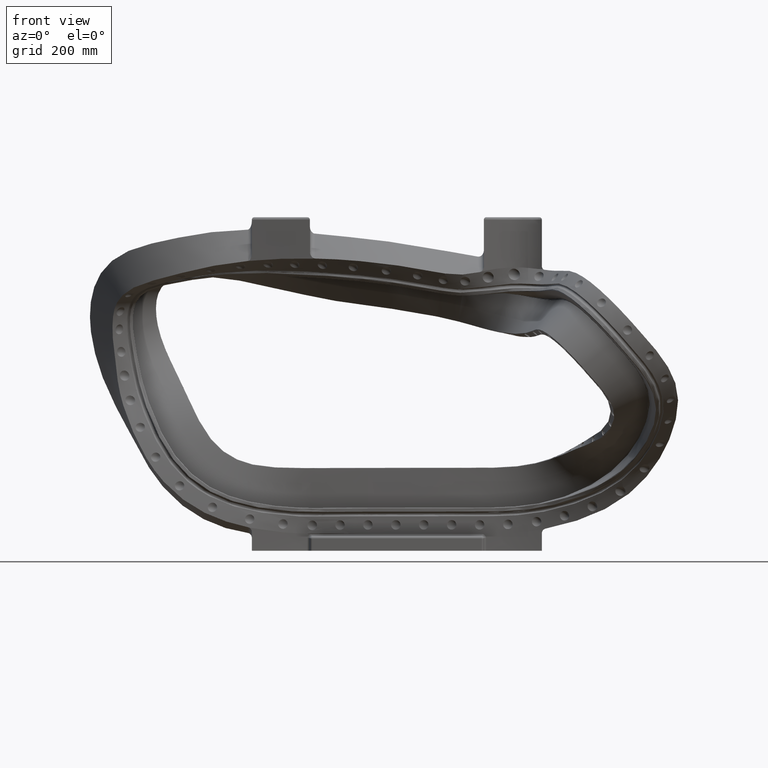
[diagram: clean part render]
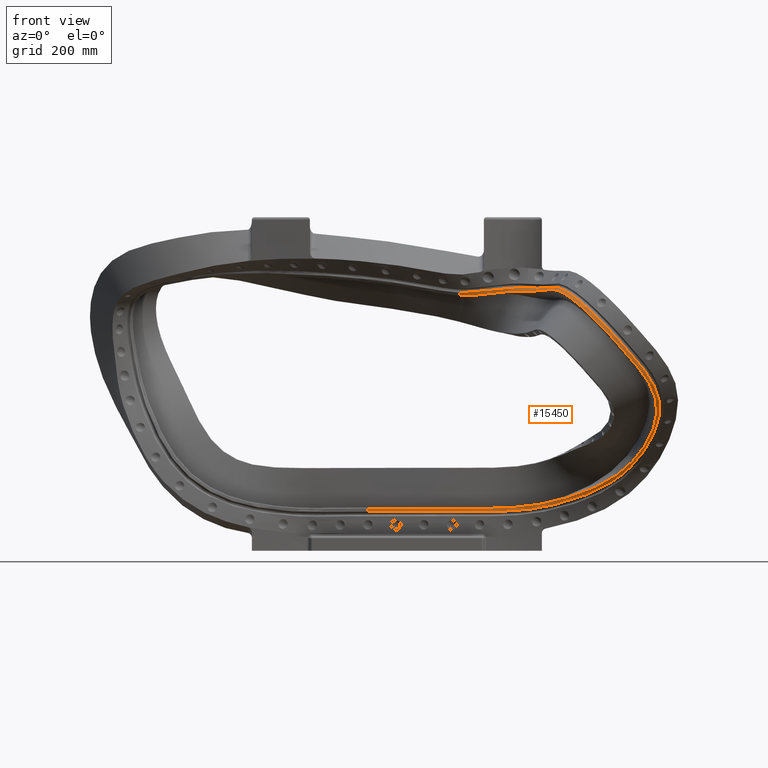
[diagram: same view with one face highlighted and labeled with its STEP entity id]
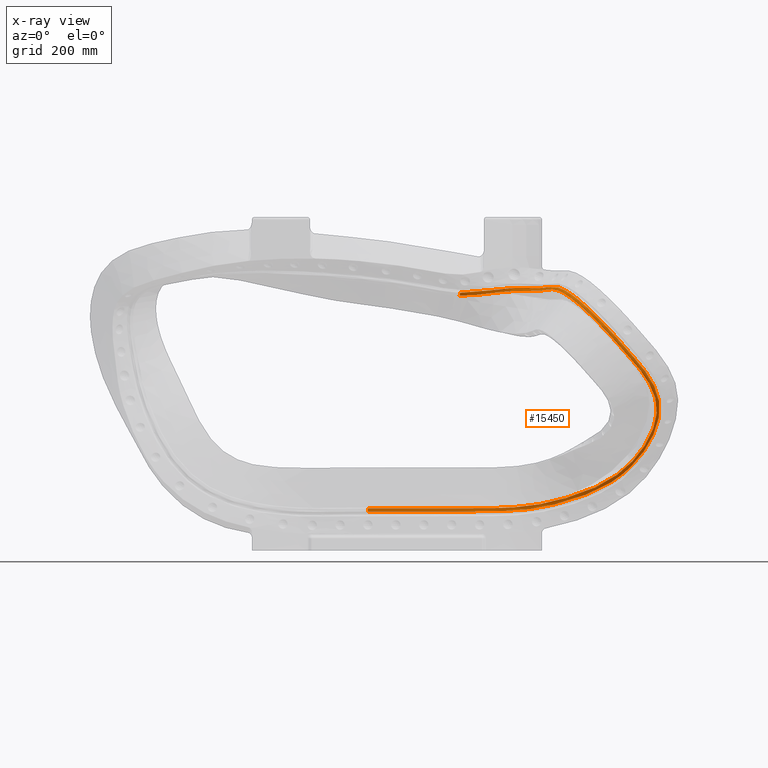
[diagram: x-ray of the same camera — body ghosted, the highlighted face saturated]
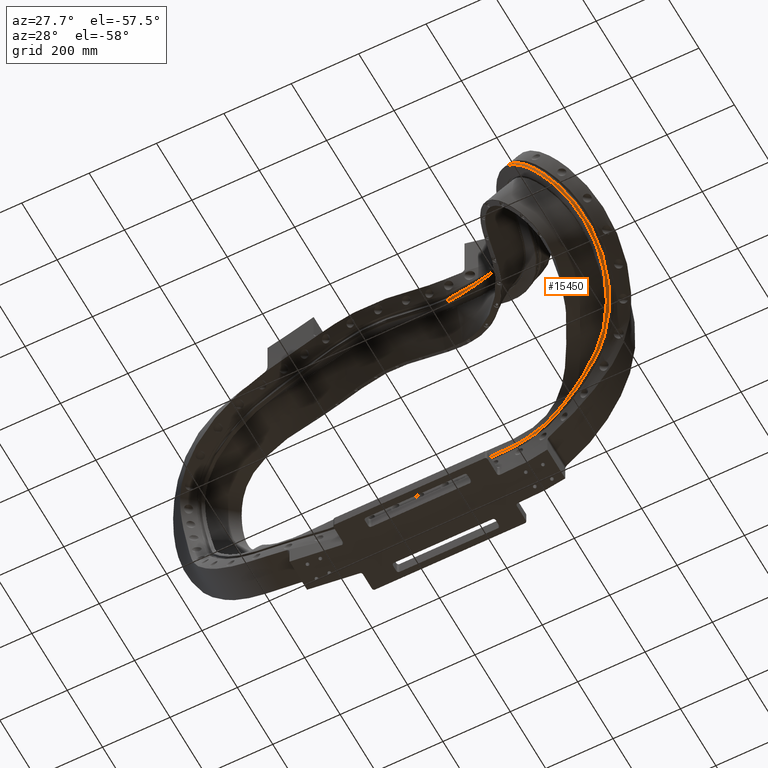
[diagram: same view with one face highlighted and labeled with its STEP entity id]
A machine part, front view. The second image highlights one B-rep face of the part: STEP entity #15450.
The next image is the same camera in x-ray: the body ghosted, the highlighted face saturated — about 0% of this face is hidden behind the body in this view.
A second angle (auxiliary view) of the same face is appended — the face is thin or edge-on in the first view.
In plain terms, the highlighted face is a freeform B-spline surface patch.
Its self-contained STEP definition (entity closure, byte-faithful):
#1148=CARTESIAN_POINT('',(3.824944234690E-3,-1.974572295003E0,
-1.345562083366E1));
#1149=CARTESIAN_POINT('',(1.397603930187E0,-1.973568912828E0,
-1.345428149159E1));
#1150=CARTESIAN_POINT('',(4.056728100355E0,-1.967651686916E0,
-1.345195248866E1));
#1151=CARTESIAN_POINT('',(7.681415688726E0,-1.972614960258E0,
-1.344351260423E1));
#1152=CARTESIAN_POINT('',(1.098959809785E1,-1.954606839683E0,
-1.344947206972E1));
#1153=CARTESIAN_POINT('',(1.400615117191E1,-1.942780272863E0,
-1.344777750227E1));
#1154=CARTESIAN_POINT('',(1.677214219210E1,-2.228041776693E0,
-1.324977881464E1));
#1155=CARTESIAN_POINT('',(1.903841046162E1,-2.877214472425E0,
-1.281927670294E1));
#1156=CARTESIAN_POINT('',(2.151901110417E1,-3.902573985812E0,
-1.213898886667E1));
#1157=CARTESIAN_POINT('',(2.391934228774E1,-5.081845668645E0,
-1.118222678303E1));
#1158=CARTESIAN_POINT('',(2.582162529104E1,-6.092249667413E0,
-1.006095410197E1));
#1159=CARTESIAN_POINT('',(2.732987758745E1,-7.204570512897E0,
-8.761580287141E0));
#1160=CARTESIAN_POINT('',(2.841053654595E1,-8.421458425797E0,
-7.486553624205E0));
#1161=CARTESIAN_POINT('',(2.931157616410E1,-9.973131094674E0,
-6.060807911595E0));
#1162=CARTESIAN_POINT('',(2.994246790276E1,-1.185526016160E1,
-4.582687894284E0));
#1163=CARTESIAN_POINT('',(3.023802568139E1,-1.393273941440E1,
-3.169625495342E0));
#1164=CARTESIAN_POINT('',(3.015687723422E1,-1.597901433261E1,
-1.861799717715E0));
#1165=CARTESIAN_POINT('',(2.978993693482E1,-1.766417850264E1,
-7.313739143893E-1));
#1166=CARTESIAN_POINT('',(2.921785445405E1,-1.909168954079E1,
3.295622420613E-1));
#1167=CARTESIAN_POINT('',(2.853092121789E1,-2.018469762695E1,1.318920892802E0));
#1168=CARTESIAN_POINT('',(2.779447225334E1,-2.104209927104E1,2.189458404526E0));
#1169=CARTESIAN_POINT('',(2.701391810389E1,-2.166969719569E1,3.064853677281E0));
#1170=CARTESIAN_POINT('',(2.614817891067E1,-2.201132850823E1,4.086372668274E0));
#1171=CARTESIAN_POINT('',(2.521699574515E1,-2.210234944895E1,5.125080577236E0));
#1172=CARTESIAN_POINT('',(2.429309874767E1,-2.193601185139E1,6.101813103565E0));
#1173=CARTESIAN_POINT('',(2.337797926975E1,-2.150999731199E1,7.029562476655E0));
#1174=CARTESIAN_POINT('',(2.244514900971E1,-2.080145645445E1,7.906022407025E0));
#1175=CARTESIAN_POINT('',(2.156083235745E1,-1.982437219992E1,8.653089394154E0));
#1176=CARTESIAN_POINT('',(2.077412083500E1,-1.863249507329E1,9.222040775813E0));
#1177=CARTESIAN_POINT('',(2.010546286477E1,-1.726820599618E1,9.599141264325E0));
#1178=CARTESIAN_POINT('',(1.956792299337E1,-1.580724173840E1,9.788926297029E0));
#1179=CARTESIAN_POINT('',(1.913171614043E1,-1.428881745205E1,9.821879105896E0));
#1180=CARTESIAN_POINT('',(1.877221113450E1,-1.296149857895E1,9.768036151210E0));
#1181=CARTESIAN_POINT('',(1.837527913225E1,-1.180245314568E1,9.703057372664E0));
#1182=CARTESIAN_POINT('',(1.786664209926E1,-1.081182766474E1,9.663513551580E0));
#1183=CARTESIAN_POINT('',(1.710667292917E1,-9.941725171703E0,9.666514290868E0));
#1184=CARTESIAN_POINT('',(1.613379152875E1,-9.349897613969E0,9.690819414010E0));
#1185=CARTESIAN_POINT('',(1.510102411001E1,-9.013282869993E0,9.683744853585E0));
#1186=CARTESIAN_POINT('',(1.392003283633E1,-8.822348976894E0,9.607012915606E0));
#1187=CARTESIAN_POINT('',(1.262993154576E1,-8.727696768366E0,9.440111318025E0));
#1188=CARTESIAN_POINT('',(1.120000193792E1,-8.637478277019E0,9.231140200479E0));
#1189=CARTESIAN_POINT('',(1.011425726372E1,-8.555656918423E0,9.172088309832E0));
#1190=CARTESIAN_POINT('',(9.538620148750E0,-8.522711489924E0,9.191326551699E0));
#2061=DIRECTION('',(1.277023601480E-3,-1.103123818106E-3,-9.999985761633E-1));
#2062=VECTOR('',#2061,3.447284512710E-1);
#2063=CARTESIAN_POINT('',(3.384717866315E-3,-1.974192016838E0,
-1.311089287323E1));
#2064=LINE('',#2063,#2062);
#6547=CARTESIAN_POINT('',(3.384717866315E-3,-1.974192016838E0,
-1.311089287323E1));
#6682=DIRECTION('',(1.158646334799E-1,-5.349293131869E-1,8.369145814251E-1));
#6683=VECTOR('',#6682,3.443449311568E-1);
#6684=CARTESIAN_POINT('',(9.498722749510E0,-8.338511292401E0,8.903139257774E0));
#6685=LINE('',#6684,#6683);
#8045=CARTESIAN_POINT('',(3.384717866315E-3,-1.974192016838E0,
-1.311089287323E1));
#8046=CARTESIAN_POINT('',(9.183539080704E-2,-1.974133691266E0,
-1.311080758127E1));
#8047=CARTESIAN_POINT('',(3.571218464663E-1,-1.973864357714E0,
-1.311059898468E1));
#8048=CARTESIAN_POINT('',(8.873406770944E-1,-1.972901656062E0,
-1.311038056199E1));
#8049=CARTESIAN_POINT('',(1.593632648554E0,-1.971307375392E0,
-1.311015373898E1));
#8050=CARTESIAN_POINT('',(2.387528600846E0,-1.970127908887E0,
-1.310938422243E1));
#8051=CARTESIAN_POINT('',(3.181178752810E0,-1.969667474808E0,
-1.310813078791E1));
#8052=CARTESIAN_POINT('',(3.974883741618E0,-1.969921346114E0,
-1.310646408681E1));
#8053=CARTESIAN_POINT('',(4.768791922358E0,-1.970463783151E0,
-1.310468142687E1));
#8054=CARTESIAN_POINT('',(5.562985223242E0,-1.970930945110E0,
-1.310303286260E1));
#8055=CARTESIAN_POINT('',(6.357450223039E0,-1.970903194733E0,
-1.310179709314E1));
#8056=CARTESIAN_POINT('',(7.152234287692E0,-1.970086971723E0,
-1.310113195110E1));
#8057=CARTESIAN_POINT('',(7.947401366900E0,-1.968209201123E0,
-1.310117384507E1));
#8058=CARTESIAN_POINT('',(8.742869025720E0,-1.965303324012E0,
-1.310176803726E1));
#8059=CARTESIAN_POINT('',(9.538486830876E0,-1.961513492005E0,
-1.310269042728E1));
#8060=CARTESIAN_POINT('',(1.033359447112E1,-1.957373408251E0,
-1.310352570995E1));
#8061=CARTESIAN_POINT('',(1.112746426524E1,-1.953893672718E0,
-1.310361443172E1));
#8062=CARTESIAN_POINT('',(1.191883072801E1,-1.952912637188E0,
-1.310196565130E1));
#8063=CARTESIAN_POINT('',(1.270667383543E1,-1.957687412954E0,
-1.309662908820E1));
#8064=CARTESIAN_POINT('',(1.348976457121E1,-1.973015655657E0,
-1.308468017889E1));
#8065=CARTESIAN_POINT('',(1.426718379905E1,-2.005175125070E0,
-1.306209567602E1));
#8066=CARTESIAN_POINT('',(1.503789063981E1,-2.061647111571E0,
-1.302397487829E1));
#8067=CARTESIAN_POINT('',(1.580066783096E1,-2.148826666397E0,
-1.296628862419E1));
#8068=CARTESIAN_POINT('',(1.655408500393E1,-2.272929344661E0,
-1.288514575395E1));
#8069=CARTESIAN_POINT('',(1.729720109265E1,-2.435254110728E0,
-1.278024107707E1));
#8070=CARTESIAN_POINT('',(1.802946871286E1,-2.636173809169E0,
-1.265173759542E1));
#8071=CARTESIAN_POINT('',(1.875231306751E1,-2.871539324089E0,
-1.250246072351E1));
#8072=CARTESIAN_POINT('',(1.946757452780E1,-3.137720786252E0,
-1.233407900108E1));
#8073=CARTESIAN_POINT('',(2.017785424522E1,-3.430565996691E0,
-1.214746924703E1));
#8074=CARTESIAN_POINT('',(2.088536298527E1,-3.746732710537E0,
-1.194173871410E1));
#8075=CARTESIAN_POINT('',(2.159188380862E1,-4.083370453428E0,
-1.171474639749E1));
#8076=CARTESIAN_POINT('',(2.229852012213E1,-4.437021076758E0,
-1.146316660456E1));
#8077=CARTESIAN_POINT('',(2.300622329685E1,-4.803972919110E0,
-1.118321679271E1));
#8078=CARTESIAN_POINT('',(2.371259483051E1,-5.182218644833E0,
-1.086937098949E1));
#8079=CARTESIAN_POINT('',(2.441424667672E1,-5.570479202494E0,
-1.051626265616E1));
#8080=CARTESIAN_POINT('',(2.510086359747E1,-5.974167287436E0,
-1.011995268840E1));
#8081=CARTESIAN_POINT('',(2.576190417124E1,-6.398782081220E0,
-9.679327276457E0));
#8082=CARTESIAN_POINT('',(2.638464773136E1,-6.853851107815E0,
-9.199736077035E0));
#8083=CARTESIAN_POINT('',(2.695991538588E1,-7.344537063446E0,
-8.688494901176E0));
#8084=CARTESIAN_POINT('',(2.748238304162E1,-7.873416701626E0,
-8.156114879923E0));
#8085=CARTESIAN_POINT('',(2.795019069534E1,-8.439365028916E0,
-7.611107706226E0));
#8086=CARTESIAN_POINT('',(2.836418568132E1,-9.039174295786E0,
-7.061284335084E0));
#8087=CARTESIAN_POINT('',(2.872635341143E1,-9.670503817342E0,
-6.511538859276E0));
#8088=CARTESIAN_POINT('',(2.903921762305E1,-1.033107098815E1,
-5.965945272529E0));
#8089=CARTESIAN_POINT('',(2.930442290549E1,-1.102016901099E1,
-5.426180123657E0));
#8090=CARTESIAN_POINT('',(2.952318010763E1,-1.173695515122E1,
-4.893402787294E0));
#8091=CARTESIAN_POINT('',(2.969493653283E1,-1.248027651831E1,
-4.367068356680E0));
#8092=CARTESIAN_POINT('',(2.981844151550E1,-1.324820750568E1,
-3.845965514633E0));
#8093=CARTESIAN_POINT('',(2.989105900422E1,-1.403781799345E1,
-3.327590086945E0));
#8094=CARTESIAN_POINT('',(2.990945076828E1,-1.484473071382E1,
-2.808731011637E0));
#8095=CARTESIAN_POINT('',(2.986949710591E1,-1.566345735060E1,
-2.285581777687E0));
#8096=CARTESIAN_POINT('',(2.976687096826E1,-1.648705662783E1,
-1.753148343281E0));
#8097=CARTESIAN_POINT('',(2.959728383640E1,-1.730533747908E1,
-1.207226721588E0));
#8098=CARTESIAN_POINT('',(2.935756448213E1,-1.810835206998E1,
-6.458436078027E-1));
#8099=CARTESIAN_POINT('',(2.904508044942E1,-1.888602971884E1,
-6.600526385218E-2));
#8100=CARTESIAN_POINT('',(2.865890868212E1,-1.962180025053E1,
5.408361901497E-1));
#8101=CARTESIAN_POINT('',(2.820198705150E1,-2.029788256913E1,1.170398967205E0));
#8102=CARTESIAN_POINT('',(2.767934294232E1,-2.092029748117E1,1.799671969680E0));
#8103=CARTESIAN_POINT('',(2.707788888449E1,-2.147561489424E1,2.473475951189E0));
#8104=CARTESIAN_POINT('',(2.641456039701E1,-2.186414384703E1,3.244444478224E0));
#8105=CARTESIAN_POINT('',(2.571540823360E1,-2.207406268175E1,4.058245512931E0));
#8106=CARTESIAN_POINT('',(2.497529967887E1,-2.212965371936E1,4.879177560543E0));
#8107=CARTESIAN_POINT('',(2.421791584704E1,-2.201640531358E1,5.684204771549E0));
#8108=CARTESIAN_POINT('',(2.346633390436E1,-2.172450936759E1,6.455968753327E0));
#8109=CARTESIAN_POINT('',(2.273473492157E1,-2.126962232313E1,7.169989563001E0));
#8110=CARTESIAN_POINT('',(2.203851950779E1,-2.066821125390E1,7.804816812220E0));
#8111=CARTESIAN_POINT('',(2.139448836151E1,-1.994259304697E1,8.344230531367E0));
#8112=CARTESIAN_POINT('',(2.081559944666E1,-1.911913648279E1,8.779210346418E0));
#8113=CARTESIAN_POINT('',(2.031035198484E1,-1.822983105234E1,9.107767462669E0));
#8114=CARTESIAN_POINT('',(1.987972429613E1,-1.730305927058E1,9.336097252516E0));
#8115=CARTESIAN_POINT('',(1.952017903581E1,-1.636683227584E1,9.476337980446E0));
#8116=CARTESIAN_POINT('',(1.921989960785E1,-1.544107505061E1,9.544660358971E0));
#8117=CARTESIAN_POINT('',(1.896455346134E1,-1.454368595807E1,9.558907251197E0));
#8118=CARTESIAN_POINT('',(1.873335163825E1,-1.368635572260E1,9.537102770409E0));
#8119=CARTESIAN_POINT('',(1.850506843397E1,-1.287995021885E1,9.496555733814E0));
#8120=CARTESIAN_POINT('',(1.825459522142E1,-1.213059896575E1,9.451213604415E0));
#8121=CARTESIAN_POINT('',(1.796262413916E1,-1.144892708811E1,9.412893640764E0));
#8122=CARTESIAN_POINT('',(1.761194641431E1,-1.084374531959E1,9.388152394392E0));
#8123=CARTESIAN_POINT('',(1.719248212571E1,-1.031815197840E1,9.377133067862E0));
#8124=CARTESIAN_POINT('',(1.670592258203E1,-9.882290475503E0,9.375811893290E0));
#8125=CARTESIAN_POINT('',(1.615552382079E1,-9.527945802640E0,9.376108694740E0));
#8126=CARTESIAN_POINT('',(1.555533815373E1,-9.253109739867E0,9.368160753955E0));
#8127=CARTESIAN_POINT('',(1.491770641775E1,-9.046118968660E0,9.344480989042E0));
#8128=CARTESIAN_POINT('',(1.425413211949E1,-8.893242132125E0,9.298631510890E0));
#8129=CARTESIAN_POINT('',(1.357465482640E1,-8.778973132553E0,9.231175497077E0));
#8130=CARTESIAN_POINT('',(1.288883891378E1,-8.689180729807E0,9.145609185517E0));
#8131=CARTESIAN_POINT('',(1.220231020371E1,-8.610397858295E0,9.054959249613E0));
#8132=CARTESIAN_POINT('',(1.151947206602E1,-8.535217444315E0,8.971908609142E0));
#8133=CARTESIAN_POINT('',(1.084192200412E1,-8.462270721111E0,8.912524946604E0));
#8134=CARTESIAN_POINT('',(1.024372486229E1,-8.401610512034E0,8.888534881598E0));
#8135=CARTESIAN_POINT('',(9.796701800820E0,-8.361852696334E0,8.891704000235E0));
#8136=CARTESIAN_POINT('',(9.573232538838E0,-8.344146741725E0,8.899738698064E0));
#8137=CARTESIAN_POINT('',(9.498722749510E0,-8.338511292401E0,8.903139257774E0));
#12398=VERTEX_POINT('',#1148);
#12399=VERTEX_POINT('',#1190);
#12429=VERTEX_POINT('',#6547);
#12432=VERTEX_POINT('',#8137);
#15147=CARTESIAN_POINT('',(-7.566279900410E-1,-1.973669919322E0,
-1.301514649989E1));
#15148=CARTESIAN_POINT('',(-7.554751106739E-1,-1.974569834705E0,
-1.394392678164E1));
#15149=CARTESIAN_POINT('',(-7.543222313067E-1,-1.975469750089E0,
-1.487270706339E1));
#15150=CARTESIAN_POINT('',(-7.531693519396E-1,-1.976369665472E0,
-1.580148734514E1));
#15151=CARTESIAN_POINT('',(-5.031245468103E-1,-1.974167542767E0,
-1.301454800727E1));
#15152=CARTESIAN_POINT('',(-5.019779517841E-1,-1.975203349749E0,
-1.394332818651E1));
#15153=CARTESIAN_POINT('',(-5.008313567579E-1,-1.976239156732E0,
-1.487210836575E1));
#15154=CARTESIAN_POINT('',(-4.996847617317E-1,-1.977274963714E0,
-1.580088854499E1));
#15155=CARTESIAN_POINT('',(2.330744819379E-1,-1.974405128239E0,
-1.301347529870E1));
#15156=CARTESIAN_POINT('',(2.342605918601E-1,-1.975518235901E0,
-1.394225540207E1));
#15157=CARTESIAN_POINT('',(2.354467017822E-1,-1.976631343562E0,
-1.487103550544E1));
#15158=CARTESIAN_POINT('',(2.366328117044E-1,-1.977744451224E0,
-1.579981560880E1));
#15159=CARTESIAN_POINT('',(1.449490340456E0,-1.971357856909E0,
-1.301345928210E1));
#15160=CARTESIAN_POINT('',(1.450936557623E0,-1.971697575251E0,
-1.394223971683E1));
#15161=CARTESIAN_POINT('',(1.452382774789E0,-1.972037293594E0,
-1.487102015156E1));
#15162=CARTESIAN_POINT('',(1.453828991956E0,-1.972377011937E0,
-1.579980058629E1));
#15163=CARTESIAN_POINT('',(2.892527974022E0,-1.969437847678E0,
-1.301187647577E1));
#15164=CARTESIAN_POINT('',(2.894338879264E0,-1.969318487970E0,
-1.394065619849E1));
#15165=CARTESIAN_POINT('',(2.896149784505E0,-1.969199128262E0,
-1.486943592122E1));
#15166=CARTESIAN_POINT('',(2.897960689746E0,-1.969079768554E0,
-1.579821564395E1));
#15167=CARTESIAN_POINT('',(4.335021468677E0,-1.970103750290E0,
-1.300869898907E1));
#15168=CARTESIAN_POINT('',(4.337054734693E0,-1.970069828293E0,
-1.393747824922E1));
#15169=CARTESIAN_POINT('',(4.339088000709E0,-1.970035906296E0,
-1.486625750936E1));
#15170=CARTESIAN_POINT('',(4.341121266725E0,-1.970001984300E0,
-1.579503676951E1));
#15171=CARTESIAN_POINT('',(5.778978911583E0,-1.971216616603E0,
-1.300550660492E1));
#15172=CARTESIAN_POINT('',(5.780906604672E0,-1.971201440120E0,
-1.393428609502E1));
#15173=CARTESIAN_POINT('',(5.782834297760E0,-1.971186263637E0,
-1.486306558513E1));
#15174=CARTESIAN_POINT('',(5.784761990848E0,-1.971171087154E0,
-1.579184507524E1));
#15175=CARTESIAN_POINT('',(7.223781802525E0,-1.970414217421E0,
-1.300387542575E1));
#15176=CARTESIAN_POINT('',(7.224599233738E0,-1.970072391213E0,
-1.393265708541E1));
#15177=CARTESIAN_POINT('',(7.225416664951E0,-1.969730565005E0,
-1.486143874507E1));
#15178=CARTESIAN_POINT('',(7.226234096164E0,-1.969388738797E0,
-1.579022040473E1));
#15179=CARTESIAN_POINT('',(8.670068372997E0,-1.966022316256E0,
-1.300459238340E1));
#15180=CARTESIAN_POINT('',(8.668312802698E0,-1.965601686637E0,
-1.393337380683E1));
#15181=CARTESIAN_POINT('',(8.666557232398E0,-1.965181057018E0,
-1.486215523026E1));
#15182=CARTESIAN_POINT('',(8.664801662098E0,-1.964760427399E0,
-1.579093665369E1));
#15183=CARTESIAN_POINT('',(1.011645254973E1,-1.958371561305E0,
-1.300653701718E1));
#15184=CARTESIAN_POINT('',(1.011240960609E1,-1.959309083008E0,
-1.393530903804E1));
#15185=CARTESIAN_POINT('',(1.010836666245E1,-1.960246604711E0,
-1.486408105889E1));
#15186=CARTESIAN_POINT('',(1.010432371881E1,-1.961184126414E0,
-1.579285307974E1));
#15187=CARTESIAN_POINT('',(1.155918271177E1,-1.951200329936E0,
-1.300697399030E1));
#15188=CARTESIAN_POINT('',(1.155853396736E1,-1.954188225356E0,
-1.393575884932E1));
#15189=CARTESIAN_POINT('',(1.155788522294E1,-1.957176120776E0,
-1.486454370835E1));
#15190=CARTESIAN_POINT('',(1.155723647852E1,-1.960164016196E0,
-1.579332856737E1));
#15191=CARTESIAN_POINT('',(1.299070438892E1,-1.956785880843E0,
-1.299924837673E1));
#15192=CARTESIAN_POINT('',(1.300643352087E1,-1.958899199674E0,
-1.392799821792E1));
#15193=CARTESIAN_POINT('',(1.302216265282E1,-1.961012518505E0,
-1.485674805910E1));
#15194=CARTESIAN_POINT('',(1.303789178477E1,-1.963125837336E0,
-1.578549790029E1));
#15195=CARTESIAN_POINT('',(1.440378658249E1,-2.003947010932E0,
-1.296591650135E1));
#15196=CARTESIAN_POINT('',(1.445541989451E1,-2.000123820221E0,
-1.389365168327E1));
#15197=CARTESIAN_POINT('',(1.450705320653E1,-1.996300629509E0,
-1.482138686519E1));
#15198=CARTESIAN_POINT('',(1.455868651855E1,-1.992477438798E0,
-1.574912204712E1));
#15199=CARTESIAN_POINT('',(1.579159143587E1,-2.135681113356E0,
-1.287905787544E1));
#15200=CARTESIAN_POINT('',(1.590128949558E1,-2.123721259213E0,
-1.380210358370E1));
#15201=CARTESIAN_POINT('',(1.601098755529E1,-2.111761405071E0,
-1.472514929196E1));
#15202=CARTESIAN_POINT('',(1.612068561501E1,-2.099801550929E0,
-1.564819500022E1));
#15203=CARTESIAN_POINT('',(1.714685765233E1,-2.389492617477E0,
-1.271525463337E1));
#15204=CARTESIAN_POINT('',(1.733075530539E1,-2.371071491837E0,
-1.362663411186E1));
#15205=CARTESIAN_POINT('',(1.751465295845E1,-2.352650366196E0,
-1.453801359035E1));
#15206=CARTESIAN_POINT('',(1.769855061150E1,-2.334229240556E0,
-1.544939306885E1));
#15207=CARTESIAN_POINT('',(1.846534662133E1,-2.772344683317E0,
-1.247343911512E1));
#15208=CARTESIAN_POINT('',(1.872949270882E1,-2.745576530211E0,
-1.336485298834E1));
#15209=CARTESIAN_POINT('',(1.899363879631E1,-2.718808377104E0,
-1.425626686157E1));
#15210=CARTESIAN_POINT('',(1.925778488381E1,-2.692040223998E0,
-1.514768073480E1));
#15211=CARTESIAN_POINT('',(1.975566880442E1,-3.262850246435E0,
-1.216829641679E1));
#15212=CARTESIAN_POINT('',(2.010419662545E1,-3.217019017536E0,
-1.302985368453E1));
#15213=CARTESIAN_POINT('',(2.045272444648E1,-3.171187788636E0,
-1.389141095227E1));
#15214=CARTESIAN_POINT('',(2.080125226751E1,-3.125356559736E0,
-1.475296822001E1));
#15215=CARTESIAN_POINT('',(2.103266681637E1,-3.837748909946E0,
-1.180455169728E1));
#15216=CARTESIAN_POINT('',(2.147355127394E1,-3.758223423029E0,
-1.262099275312E1));
#15217=CARTESIAN_POINT('',(2.191443573152E1,-3.678697936112E0,
-1.343743380895E1));
#15218=CARTESIAN_POINT('',(2.235532018909E1,-3.599172449194E0,
-1.425387486479E1));
#15219=CARTESIAN_POINT('',(2.230700510745E1,-4.479091838312E0,
-1.137059864165E1));
#15220=CARTESIAN_POINT('',(2.284799650416E1,-4.351490200567E0,
-1.211918828940E1));
#15221=CARTESIAN_POINT('',(2.338898790088E1,-4.223888562821E0,
-1.286777793716E1));
#15222=CARTESIAN_POINT('',(2.392997929759E1,-4.096286925076E0,
-1.361636758491E1));
#15223=CARTESIAN_POINT('',(2.358418044631E1,-5.164925023838E0,
-1.084474123581E1));
#15224=CARTESIAN_POINT('',(2.422745562009E1,-4.975180763367E0,
-1.149451793149E1));
#15225=CARTESIAN_POINT('',(2.487073079388E1,-4.785436502896E0,
-1.214429462717E1));
#15226=CARTESIAN_POINT('',(2.551400596767E1,-4.595692242425E0,
-1.279407132284E1));
#15227=CARTESIAN_POINT('',(2.484859349949E1,-5.883866672571E0,
-1.019406586100E1));
#15228=CARTESIAN_POINT('',(2.558530267419E1,-5.624519797609E0,
-1.070809921170E1));
#15229=CARTESIAN_POINT('',(2.632201184889E1,-5.365172922648E0,
-1.122213256239E1));
#15230=CARTESIAN_POINT('',(2.705872102359E1,-5.105826047687E0,
-1.173616591309E1));
#15231=CARTESIAN_POINT('',(2.604002615720E1,-6.664192329864E0,
-9.398060654056E0));
#15232=CARTESIAN_POINT('',(2.684653465721E1,-6.345306968163E0,
-9.747376015426E0));
#15233=CARTESIAN_POINT('',(2.765304315721E1,-6.026421606461E0,
-1.009669137680E1));
#15234=CARTESIAN_POINT('',(2.845955165722E1,-5.707536244760E0,
-1.044600673816E1));
#15235=CARTESIAN_POINT('',(2.708805662517E1,-7.555022739263E0,
-8.484635655534E0));
#15236=CARTESIAN_POINT('',(2.793362841778E1,-7.201176659404E0,
-8.663253987017E0));
#15237=CARTESIAN_POINT('',(2.877920021040E1,-6.847330579545E0,
-8.841872318500E0));
#15238=CARTESIAN_POINT('',(2.962477200301E1,-6.493484499686E0,
-9.020490649984E0));
#15239=CARTESIAN_POINT('',(2.795878648192E1,-8.570257209039E0,
-7.511597599628E0));
#15240=CARTESIAN_POINT('',(2.881667081978E1,-8.205205708297E0,
-7.533486251692E0));
#15241=CARTESIAN_POINT('',(2.967455515763E1,-7.840154207555E0,
-7.555374903755E0));
#15242=CARTESIAN_POINT('',(3.053243949548E1,-7.475102706813E0,
-7.577263555819E0));
#15243=CARTESIAN_POINT('',(2.865420469995E1,-9.693998623796E0,
-6.524387181408E0));
#15244=CARTESIAN_POINT('',(2.950594665769E1,-9.334060898382E0,
-6.411724544657E0));
#15245=CARTESIAN_POINT('',(3.035768861544E1,-8.974123172969E0,
-6.299061907905E0));
#15246=CARTESIAN_POINT('',(3.120943057318E1,-8.614185447555E0,
-6.186399271154E0));
#15247=CARTESIAN_POINT('',(2.918799642053E1,-1.091272509947E1,
-5.548608597122E0));
#15248=CARTESIAN_POINT('',(3.002403951808E1,-1.057060458614E1,
-5.324367068946E0));
#15249=CARTESIAN_POINT('',(3.086008261564E1,-1.022848407280E1,
-5.100125540770E0));
#15250=CARTESIAN_POINT('',(3.169612571319E1,-9.886363559463E0,
-4.875884012594E0));
#15251=CARTESIAN_POINT('',(2.956894008123E1,-1.222230272477E1,
-4.593682414966E0));
#15252=CARTESIAN_POINT('',(3.038657416558E1,-1.191054424082E1,
-4.277844022751E0));
#15253=CARTESIAN_POINT('',(3.120420824993E1,-1.159878575687E1,
-3.962005630535E0));
#15254=CARTESIAN_POINT('',(3.202184233428E1,-1.128702727293E1,
-3.646167238319E0));
#15255=CARTESIAN_POINT('',(2.979339718224E1,-1.361525989899E1,
-3.656949864692E0));
#15256=CARTESIAN_POINT('',(3.059249266669E1,-1.334533646187E1,
-3.264897130275E0));
#15257=CARTESIAN_POINT('',(3.139158815114E1,-1.307541302476E1,
-2.872844395858E0));
#15258=CARTESIAN_POINT('',(3.219068363559E1,-1.280548958764E1,
-2.480791661441E0));
#15259=CARTESIAN_POINT('',(2.983709510230E1,-1.482133250810E1,
-2.885807026357E0));
#15260=CARTESIAN_POINT('',(3.061958223641E1,-1.459257276186E1,
-2.439342836260E0));
#15261=CARTESIAN_POINT('',(3.140206937052E1,-1.436381301561E1,
-1.992878646164E0));
#15262=CARTESIAN_POINT('',(3.218455650464E1,-1.413505326936E1,
-1.546414456068E0));
#15263=CARTESIAN_POINT('',(2.977593073482E1,-1.581091921184E1,
-2.254697829201E0));
#15264=CARTESIAN_POINT('',(3.054279068335E1,-1.561593137737E1,
-1.767775821979E0));
#15265=CARTESIAN_POINT('',(3.130965063187E1,-1.542094354290E1,
-1.280853814756E0));
#15266=CARTESIAN_POINT('',(3.207651058040E1,-1.522595570843E1,
-7.939318075340E-1));
#15267=CARTESIAN_POINT('',(2.967921053053E1,-1.654665981927E1,
-1.779106195317E0));
#15268=CARTESIAN_POINT('',(3.043317805982E1,-1.637579130458E1,
-1.263857964473E0));
#15269=CARTESIAN_POINT('',(3.118714558911E1,-1.620492278988E1,
-7.486097336291E-1));
#15270=CARTESIAN_POINT('',(3.194111311840E1,-1.603405427518E1,
-2.333615027850E-1));
#15271=CARTESIAN_POINT('',(2.952382779530E1,-1.729714721171E1,
-1.279249656619E0));
#15272=CARTESIAN_POINT('',(3.026308598214E1,-1.714924607412E1,
-7.363604480385E-1));
#15273=CARTESIAN_POINT('',(3.100234416898E1,-1.700134493653E1,
-1.934712394582E-1));
#15274=CARTESIAN_POINT('',(3.174160235583E1,-1.685344379893E1,
3.494179691220E-1));
#15275=CARTESIAN_POINT('',(2.931587234834E1,-1.801553125600E1,
-7.801868839409E-1));
#15276=CARTESIAN_POINT('',(3.003958041338E1,-1.788793749860E1,
-2.118406390876E-1));
#15277=CARTESIAN_POINT('',(3.076328847843E1,-1.776034374119E1,
3.565056057656E-1));
#15278=CARTESIAN_POINT('',(3.148699654348E1,-1.763274998379E1,
9.248518506189E-1));
#15279=CARTESIAN_POINT('',(2.904197909900E1,-1.873315157484E1,
-2.529208300584E-1));
#15280=CARTESIAN_POINT('',(2.974917077445E1,-1.862266047256E1,
3.391977417317E-1));
#15281=CARTESIAN_POINT('',(3.045636244990E1,-1.851216937028E1,
9.313163135218E-1));
#15282=CARTESIAN_POINT('',(3.116355412535E1,-1.840167826800E1,
1.523434885312E0));
#15283=CARTESIAN_POINT('',(2.871523360146E1,-1.940262205450E1,
2.817330725471E-1));
#15284=CARTESIAN_POINT('',(2.940747863520E1,-1.930216926097E1,
8.929146454279E-1));
#15285=CARTESIAN_POINT('',(3.009972366893E1,-1.920171646744E1,
1.504096218309E0));
#15286=CARTESIAN_POINT('',(3.079196870267E1,-1.910126367390E1,
2.115277791190E0));
#15287=CARTESIAN_POINT('',(2.838979788954E1,-1.992993660819E1,
7.511769212113E-1));
#15288=CARTESIAN_POINT('',(2.906959928393E1,-1.983629543373E1,
1.377156613670E0));
#15289=CARTESIAN_POINT('',(2.974940067832E1,-1.974265425926E1,
2.003136306129E0));
#15290=CARTESIAN_POINT('',(3.042920207271E1,-1.964901308480E1,
2.629115998588E0));
#15291=CARTESIAN_POINT('',(2.810205473527E1,-2.032857029895E1,
1.131205593698E0));
#15292=CARTESIAN_POINT('',(2.877141655206E1,-2.024146013756E1,
1.769227002826E0));
#15293=CARTESIAN_POINT('',(2.944077836885E1,-2.015434997616E1,
2.407248411953E0));
#15294=CARTESIAN_POINT('',(3.011014018565E1,-2.006723981477E1,
3.045269821080E0));
#15295=CARTESIAN_POINT('',(2.787224262082E1,-2.061483993077E1,
1.417262922236E0));
#15296=CARTESIAN_POINT('',(2.853298852279E1,-2.053374534854E1,
2.064976777189E0));
#15297=CARTESIAN_POINT('',(2.919373442477E1,-2.045265076631E1,
2.712690632142E0));
#15298=CARTESIAN_POINT('',(2.985448032674E1,-2.037155618408E1,
3.360404487096E0));
#15299=CARTESIAN_POINT('',(2.762757568250E1,-2.089071113134E1,
1.705716239742E0));
#15300=CARTESIAN_POINT('',(2.828133839444E1,-2.081365286148E1,
2.360931183107E0));
#15301=CARTESIAN_POINT('',(2.893510110637E1,-2.073659459162E1,
3.016146126471E0));
#15302=CARTESIAN_POINT('',(2.958886381831E1,-2.065953632176E1,
3.671361069836E0));
#15303=CARTESIAN_POINT('',(2.737451229611E1,-2.114559338183E1,
1.995499085116E0));
#15304=CARTESIAN_POINT('',(2.802582444473E1,-2.106730390473E1,
2.652992532392E0));
#15305=CARTESIAN_POINT('',(2.867713659335E1,-2.098901442762E1,
3.310485979668E0));
#15306=CARTESIAN_POINT('',(2.932844874198E1,-2.091072495052E1,
3.967979426944E0));
#15307=CARTESIAN_POINT('',(2.714345992360E1,-2.134734461370E1,
2.257250728340E0));
#15308=CARTESIAN_POINT('',(2.779629679627E1,-2.126446570092E1,
2.912681414644E0));
#15309=CARTESIAN_POINT('',(2.844913366895E1,-2.118158678814E1,
3.568112100948E0));
#15310=CARTESIAN_POINT('',(2.910197054162E1,-2.109870787535E1,
4.223542787252E0));
#15311=CARTESIAN_POINT('',(2.694495612686E1,-2.149889455217E1,
2.483190085342E0));
#15312=CARTESIAN_POINT('',(2.760158177860E1,-2.141036882125E1,
3.134082574788E0));
#15313=CARTESIAN_POINT('',(2.825820743033E1,-2.132184309033E1,
3.784975064234E0));
#15314=CARTESIAN_POINT('',(2.891483308207E1,-2.123331735941E1,
4.435867553679E0));
#15315=CARTESIAN_POINT('',(2.679568250036E1,-2.160091019449E1,
2.654385145004E0));
#15316=CARTESIAN_POINT('',(2.745675068670E1,-2.150726683694E1,
3.300050065408E0));
#15317=CARTESIAN_POINT('',(2.811781887305E1,-2.141362347939E1,
3.945714985813E0));
#15318=CARTESIAN_POINT('',(2.877888705939E1,-2.131998012184E1,
4.591379906218E0));
#15319=CARTESIAN_POINT('',(2.664777096320E1,-2.169067501270E1,
2.825662591486E0));
#15320=CARTESIAN_POINT('',(2.731364437210E1,-2.159216723367E1,
3.465634314256E0));
#15321=CARTESIAN_POINT('',(2.797951778100E1,-2.149365945464E1,
4.105606037026E0));
#15322=CARTESIAN_POINT('',(2.864539118990E1,-2.139515167561E1,
4.745577759796E0));
#15323=CARTESIAN_POINT('',(2.645422514547E1,-2.179559230009E1,
3.050629986644E0));
#15324=CARTESIAN_POINT('',(2.712531591235E1,-2.169211030010E1,
3.684349224557E0));
#15325=CARTESIAN_POINT('',(2.779640667923E1,-2.158862830011E1,
4.318068462470E0));
#15326=CARTESIAN_POINT('',(2.846749744610E1,-2.148514630012E1,
4.951787700383E0));
#15327=CARTESIAN_POINT('',(2.619978096388E1,-2.190851868359E1,
3.347182655241E0));
#15328=CARTESIAN_POINT('',(2.687619001913E1,-2.180057592690E1,
3.974463398961E0));
#15329=CARTESIAN_POINT('',(2.755259907438E1,-2.169263317020E1,
4.601744142681E0));
#15330=CARTESIAN_POINT('',(2.822900812963E1,-2.158469041351E1,
5.229024886401E0));
#15331=CARTESIAN_POINT('',(2.587553374117E1,-2.201309073021E1,
3.723128431406E0));
#15332=CARTESIAN_POINT('',(2.655588528541E1,-2.190215799531E1,
4.345587406653E0));
#15333=CARTESIAN_POINT('',(2.723623682965E1,-2.179122526040E1,
4.968046381901E0));
#15334=CARTESIAN_POINT('',(2.791658837389E1,-2.168029252550E1,
5.590505357148E0));
#15335=CARTESIAN_POINT('',(2.555055610292E1,-2.208049622541E1,
4.094492709966E0));
#15336=CARTESIAN_POINT('',(2.623126915011E1,-2.196850046666E1,
4.716361994857E0));
#15337=CARTESIAN_POINT('',(2.691198219729E1,-2.185650470791E1,
5.338231279749E0));
#15338=CARTESIAN_POINT('',(2.759269524448E1,-2.174450894916E1,
5.960100564640E0));
#15339=CARTESIAN_POINT('',(2.521795144954E1,-2.211562227794E1,4.465964771E0));
#15340=CARTESIAN_POINT('',(2.589770049405E1,-2.200317100255E1,
5.088806229980E0));
#15341=CARTESIAN_POINT('',(2.657744953855E1,-2.189071972716E1,
5.711647688959E0));
#15342=CARTESIAN_POINT('',(2.725719858306E1,-2.177826845177E1,
6.334489147939E0));
#15343=CARTESIAN_POINT('',(2.476909444625E1,-2.211962796413E1,
4.957513617998E0));
#15344=CARTESIAN_POINT('',(2.544896461498E1,-2.200684488825E1,
5.580162561681E0));
#15345=CARTESIAN_POINT('',(2.612883478371E1,-2.189406181237E1,
6.202811505364E0));
#15346=CARTESIAN_POINT('',(2.680870495243E1,-2.178127873650E1,
6.825460449047E0));
#15347=CARTESIAN_POINT('',(2.419738384323E1,-2.203593763378E1,
5.565624724675E0));
#15348=CARTESIAN_POINT('',(2.487933363793E1,-2.192401117080E1,
6.186155077396E0));
#15349=CARTESIAN_POINT('',(2.556128343263E1,-2.181208470782E1,
6.806685430117E0));
#15350=CARTESIAN_POINT('',(2.624323322733E1,-2.170015824484E1,
7.427215782839E0));
#15351=CARTESIAN_POINT('',(2.350703598395E1,-2.178537043776E1,
6.277276258711E0));
#15352=CARTESIAN_POINT('',(2.419102838966E1,-2.167601140207E1,
6.896010450201E0));
#15353=CARTESIAN_POINT('',(2.487502079537E1,-2.156665236638E1,
7.514744641691E0));
#15354=CARTESIAN_POINT('',(2.555901320108E1,-2.145729333069E1,
8.133478833181E0));
#15355=CARTESIAN_POINT('',(2.284898246445E1,-2.140752281381E1,
6.927011973689E0));
#15356=CARTESIAN_POINT('',(2.353034014903E1,-2.129973113378E1,
7.548928070102E0));
#15357=CARTESIAN_POINT('',(2.421169783362E1,-2.119193945374E1,
8.170844166515E0));
#15358=CARTESIAN_POINT('',(2.489305551821E1,-2.108414777371E1,
8.792760262928E0));
#15359=CARTESIAN_POINT('',(2.219960798450E1,-2.089372072763E1,
7.531952356237E0));
#15360=CARTESIAN_POINT('',(2.287602078216E1,-2.078610354782E1,
8.159280860028E0));
#15361=CARTESIAN_POINT('',(2.355243357983E1,-2.067848636801E1,
8.786609363819E0));
#15362=CARTESIAN_POINT('',(2.422884637750E1,-2.057086918820E1,
9.413937867609E0));
#15363=CARTESIAN_POINT('',(2.139509414352E1,-2.007280568051E1,
8.230256880621E0));
#15364=CARTESIAN_POINT('',(2.206330923746E1,-1.996421181686E1,
8.866184718231E0));
#15365=CARTESIAN_POINT('',(2.273152433140E1,-1.985561795321E1,
9.502112555841E0));
#15366=CARTESIAN_POINT('',(2.339973942533E1,-1.974702408956E1,
1.013804039345E1));
#15367=CARTESIAN_POINT('',(2.050987500072E1,-1.880753985162E1,
8.894357310936E0));
#15368=CARTESIAN_POINT('',(2.116542927801E1,-1.869441001051E1,
9.542629026806E0));
#15369=CARTESIAN_POINT('',(2.182098355530E1,-1.858128016940E1,
1.019090074268E1));
#15370=CARTESIAN_POINT('',(2.247653783260E1,-1.846815032829E1,
1.083917245855E1));
#15371=CARTESIAN_POINT('',(1.970575480369E1,-1.712247776161E1,
9.335648743957E0));
#15372=CARTESIAN_POINT('',(2.034500815869E1,-1.700212781511E1,
9.998748342581E0));
#15373=CARTESIAN_POINT('',(2.098426151369E1,-1.688177786861E1,
1.066184794120E1));
#15374=CARTESIAN_POINT('',(2.162351486869E1,-1.676142792211E1,
1.132494753983E1));
#15375=CARTESIAN_POINT('',(1.913169516893E1,-1.542259526877E1,
9.495190712570E0));
#15376=CARTESIAN_POINT('',(1.975226521972E1,-1.529258867884E1,
1.017408918995E1));
#15377=CARTESIAN_POINT('',(2.037283527052E1,-1.516258208890E1,
1.085298766733E1));
#15378=CARTESIAN_POINT('',(2.099340532131E1,-1.503257549897E1,
1.153188614472E1));
#15379=CARTESIAN_POINT('',(1.870479955571E1,-1.381726840323E1,
9.477694364443E0));
#15380=CARTESIAN_POINT('',(1.930251241956E1,-1.366856159279E1,
1.017323858912E1));
#15381=CARTESIAN_POINT('',(1.990022528341E1,-1.351985478235E1,
1.086878281379E1));
#15382=CARTESIAN_POINT('',(2.049793814726E1,-1.337114797191E1,
1.156432703847E1));
#15383=CARTESIAN_POINT('',(1.837018362596E1,-1.262680620644E1,
9.405509801642E0));
#15384=CARTESIAN_POINT('',(1.894257047684E1,-1.245036601777E1,
1.011583082885E1));
#15385=CARTESIAN_POINT('',(1.951495732772E1,-1.227392582910E1,
1.082615185606E1));
#15386=CARTESIAN_POINT('',(2.008734417861E1,-1.209748564043E1,
1.153647288327E1));
#15387=CARTESIAN_POINT('',(1.804132768222E1,-1.176933436073E1,
9.353297873800E0));
#15388=CARTESIAN_POINT('',(1.858413338725E1,-1.156678535614E1,
1.007949792989E1));
#15389=CARTESIAN_POINT('',(1.912693909229E1,-1.136423635154E1,
1.080569798598E1));
#15390=CARTESIAN_POINT('',(1.966974479733E1,-1.116168734695E1,
1.153189804207E1));
#15391=CARTESIAN_POINT('',(1.766078128082E1,-1.099499278275E1,
9.312079613316E0));
#15392=CARTESIAN_POINT('',(1.816604099479E1,-1.076647543987E1,
1.005796526956E1));
#15393=CARTESIAN_POINT('',(1.867130070876E1,-1.053795809700E1,
1.080385092581E1));
#15394=CARTESIAN_POINT('',(1.917656042273E1,-1.030944075412E1,
1.154973658206E1));
#15395=CARTESIAN_POINT('',(1.717108217497E1,-1.034848872594E1,
9.295004243184E0));
#15396=CARTESIAN_POINT('',(1.762416803253E1,-1.010503783434E1,
1.006968982633E1));
#15397=CARTESIAN_POINT('',(1.807725389009E1,-9.861586942735E0,
1.084437540947E1));
#15398=CARTESIAN_POINT('',(1.853033974765E1,-9.618136051132E0,
1.161906099262E1));
#15399=CARTESIAN_POINT('',(1.657427421565E1,-9.844108716309E0,
9.290413538397E0));
#15400=CARTESIAN_POINT('',(1.696551687917E1,-9.613551576832E0,
1.010128650171E1));
#15401=CARTESIAN_POINT('',(1.735675954270E1,-9.382994437354E0,
1.091215946503E1));
#15402=CARTESIAN_POINT('',(1.774800220622E1,-9.152437297876E0,
1.172303242835E1));
#15403=CARTESIAN_POINT('',(1.590967471906E1,-9.423865925409E0,
9.285465854727E0));
#15404=CARTESIAN_POINT('',(1.623656609341E1,-9.228019789153E0,
1.013443985316E1));
#15405=CARTESIAN_POINT('',(1.656345746777E1,-9.032173652897E0,
1.098341385160E1));
#15406=CARTESIAN_POINT('',(1.689034884213E1,-8.836327516641E0,
1.183238785004E1));
#15407=CARTESIAN_POINT('',(1.496896755927E1,-9.055235001239E0,
9.260939711538E0));
#15408=CARTESIAN_POINT('',(1.521649487713E1,-8.945693532666E0,
1.015432538340E1));
#15409=CARTESIAN_POINT('',(1.546402219499E1,-8.836152064094E0,
1.104771105525E1));
#15410=CARTESIAN_POINT('',(1.571154951286E1,-8.726610595522E0,
1.194109672711E1));
#15411=CARTESIAN_POINT('',(1.375598105514E1,-8.793351963783E0,
9.162412063321E0));
#15412=CARTESIAN_POINT('',(1.392598726838E1,-8.837052011255E0,
1.008037287638E1));
#15413=CARTESIAN_POINT('',(1.409599348162E1,-8.880752058727E0,
1.099833368945E1));
#15414=CARTESIAN_POINT('',(1.426599969486E1,-8.924452106199E0,
1.191629450251E1));
#15415=CARTESIAN_POINT('',(1.251025690300E1,-8.621805137101E0,
9.000552532003E0));
#15416=CARTESIAN_POINT('',(1.262751327011E1,-8.837250263518E0,
9.902003064184E0));
#15417=CARTESIAN_POINT('',(1.274476963721E1,-9.052695389935E0,
1.080345359636E1));
#15418=CARTESIAN_POINT('',(1.286202600432E1,-9.268140516352E0,
1.170490412854E1));
#15419=CARTESIAN_POINT('',(1.126785338576E1,-8.469694049258E0,
8.846392830462E0));
#15420=CARTESIAN_POINT('',(1.136176587898E1,-8.836590313831E0,
9.698372444048E0));
#15421=CARTESIAN_POINT('',(1.145567837219E1,-9.203486578403E0,
1.055035205763E1));
#15422=CARTESIAN_POINT('',(1.154959086541E1,-9.570382842975E0,
1.140233167122E1));
#15423=CARTESIAN_POINT('',(1.026425296951E1,-8.354746580440E0,
8.796931146365E0));
#15424=CARTESIAN_POINT('',(1.036121339479E1,-8.808073646042E0,
9.602709036022E0));
#15425=CARTESIAN_POINT('',(1.045817382007E1,-9.261400711644E0,
1.040848692568E1));
#15426=CARTESIAN_POINT('',(1.055513424535E1,-9.714727777246E0,
1.121426481534E1));
#15427=CARTESIAN_POINT('',(9.419320031968E0,-8.278495317494E0,
8.819247351264E0));
#15428=CARTESIAN_POINT('',(9.527444087937E0,-8.780775659004E0,
9.593352655551E0));
#15429=CARTESIAN_POINT('',(9.635568143907E0,-9.283056000514E0,
1.036745795984E1));
#15430=CARTESIAN_POINT('',(9.743692199876E0,-9.785336342023E0,
1.114156326412E1));
#15431=CARTESIAN_POINT('',(8.981667413641E0,-8.249100528011E0,
8.854549454313E0));
#15432=CARTESIAN_POINT('',(9.097759609966E0,-8.768303091914E0,
9.615911858672E0));
#15433=CARTESIAN_POINT('',(9.213851806292E0,-9.287505655816E0,
1.037727426303E1));
#15434=CARTESIAN_POINT('',(9.329944002618E0,-9.806708219719E0,
1.113863666739E1));
#15435=CARTESIAN_POINT('',(8.727474084439E0,-8.236408454268E0,
8.882595748871E0));
#15436=CARTESIAN_POINT('',(8.848413753505E0,-8.762951811809E0,
9.638183347444E0));
#15437=CARTESIAN_POINT('',(8.969353422572E0,-9.289495169350E0,
1.039377094602E1));
#15438=CARTESIAN_POINT('',(9.090293091638E0,-9.816038526890E0,
1.114935854459E1));
#15439=B_SPLINE_SURFACE_WITH_KNOTS('',3,3,((#15147,#15148,#15149,#15150),
(#15151,#15152,#15153,#15154),(#15155,#15156,#15157,#15158),(#15159,#15160,
#15161,#15162),(#15163,#15164,#15165,#15166),(#15167,#15168,#15169,#15170),(
#15171,#15172,#15173,#15174),(#15175,#15176,#15177,#15178),(#15179,#15180,
#15181,#15182),(#15183,#15184,#15185,#15186),(#15187,#15188,#15189,#15190),(
#15191,#15192,#15193,#15194),(#15195,#15196,#15197,#15198),(#15199,#15200,
#15201,#15202),(#15203,#15204,#15205,#15206),(#15207,#15208,#15209,#15210),(
#15211,#15212,#15213,#15214),(#15215,#15216,#15217,#15218),(#15219,#15220,
#15221,#15222),(#15223,#15224,#15225,#15226),(#15227,#15228,#15229,#15230),(
#15231,#15232,#15233,#15234),(#15235,#15236,#15237,#15238),(#15239,#15240,
#15241,#15242),(#15243,#15244,#15245,#15246),(#15247,#15248,#15249,#15250),(
#15251,#15252,#15253,#15254),(#15255,#15256,#15257,#15258),(#15259,#15260,
#15261,#15262),(#15263,#15264,#15265,#15266),(#15267,#15268,#15269,#15270),(
#15271,#15272,#15273,#15274),(#15275,#15276,#15277,#15278),(#15279,#15280,
#15281,#15282),(#15283,#15284,#15285,#15286),(#15287,#15288,#15289,#15290),(
#15291,#15292,#15293,#15294),(#15295,#15296,#15297,#15298),(#15299,#15300,
#15301,#15302),(#15303,#15304,#15305,#15306),(#15307,#15308,#15309,#15310),(
#15311,#15312,#15313,#15314),(#15315,#15316,#15317,#15318),(#15319,#15320,
#15321,#15322),(#15323,#15324,#15325,#15326),(#15327,#15328,#15329,#15330),(
#15331,#15332,#15333,#15334),(#15335,#15336,#15337,#15338),(#15339,#15340,
#15341,#15342),(#15343,#15344,#15345,#15346),(#15347,#15348,#15349,#15350),(
#15351,#15352,#15353,#15354),(#15355,#15356,#15357,#15358),(#15359,#15360,
#15361,#15362),(#15363,#15364,#15365,#15366),(#15367,#15368,#15369,#15370),(
#15371,#15372,#15373,#15374),(#15375,#15376,#15377,#15378),(#15379,#15380,
#15381,#15382),(#15383,#15384,#15385,#15386),(#15387,#15388,#15389,#15390),(
#15391,#15392,#15393,#15394),(#15395,#15396,#15397,#15398),(#15399,#15400,
#15401,#15402),(#15403,#15404,#15405,#15406),(#15407,#15408,#15409,#15410),(
#15411,#15412,#15413,#15414),(#15415,#15416,#15417,#15418),(#15419,#15420,
#15421,#15422),(#15423,#15424,#15425,#15426),(#15427,#15428,#15429,#15430),(
#15431,#15432,#15433,#15434),(#15435,#15436,#15437,#15438)),.UNSPECIFIED.,.F.,
.F.,.F.,(4,1,1,1,1,1,1,1,1,1,1,1,1,1,1,1,1,1,1,1,1,1,1,1,1,1,1,1,1,1,1,1,1,1,1,
1,1,1,1,1,1,1,1,1,1,1,1,1,1,1,1,1,1,1,1,1,1,1,1,1,1,1,1,1,1,1,1,1,1,1,4),(4,4),(
-1.083696585373E-2,0.E0,2.066192055329E-2,4.131811142110E-2,6.197868512533E-2,
8.261733351780E-2,1.032948932702E-1,1.239478290755E-1,1.445930848049E-1,
1.652515519050E-1,1.859045480888E-1,2.065467986593E-1,2.272139499153E-1,
2.478542874149E-1,2.684902431521E-1,2.891398968328E-1,3.097718419720E-1,
3.304224483353E-1,3.510806473095E-1,3.717098915500E-1,3.923805321323E-1,
4.130272102394E-1,4.336890659113E-1,4.543410661861E-1,4.749841561228E-1,
4.956429571354E-1,5.162959319092E-1,5.369265076192E-1,5.468442390420E-1,
5.575884480834E-1,5.674960498329E-1,5.782292850615E-1,5.881229882192E-1,
5.988411666401E-1,6.087549731962E-1,6.139101526053E-1,6.194949302985E-1,
6.242375945660E-1,6.293754808558E-1,6.345133671456E-1,6.371850680163E-1,
6.400794106262E-1,6.423572689892E-1,6.448249488824E-1,6.499659486600E-1,
6.551069484376E-1,6.606763648632E-1,6.654181552179E-1,6.705550947687E-1,
6.812570521664E-1,6.911317475241E-1,7.018293341617E-1,7.117199934471E-1,
7.224348743397E-1,7.430281940368E-1,7.636453062967E-1,7.842862019249E-1,
8.049118961619E-1,8.255913304002E-1,8.354946290655E-1,8.462232026197E-1,
8.668582014318E-1,8.767447378960E-1,8.874551523988E-1,9.080834546821E-1,
9.287472646858E-1,9.493914458051E-1,9.700260784889E-1,9.906761767908E-1,1.E0,
1.012778346097E0),(-1.394614742929E-2,1.037504589414E0),.UNSPECIFIED.);
#15441=ORIENTED_EDGE('',*,*,#15440,.F.);
#15443=ORIENTED_EDGE('',*,*,#15442,.F.);
#15445=ORIENTED_EDGE('',*,*,#15444,.T.);
#15447=ORIENTED_EDGE('',*,*,#15446,.T.);
#15448=EDGE_LOOP('',(#15441,#15443,#15445,#15447));
#15449=FACE_OUTER_BOUND('',#15448,.F.);
#15450=ADVANCED_FACE('',(#15449),#15439,.F.);
#1191=B_SPLINE_CURVE_WITH_KNOTS('',3,(#1148,#1149,#1150,#1151,#1152,#1153,#1154,
#1155,#1156,#1157,#1158,#1159,#1160,#1161,#1162,#1163,#1164,#1165,#1166,#1167,
#1168,#1169,#1170,#1171,#1172,#1173,#1174,#1175,#1176,#1177,#1178,#1179,#1180,
#1181,#1182,#1183,#1184,#1185,#1186,#1187,#1188,#1189,#1190),.UNSPECIFIED.,.F.,
.F.,(4,1,1,1,1,1,1,1,1,1,1,1,1,1,1,1,1,1,1,1,1,1,1,1,1,1,1,1,1,1,1,1,1,1,1,1,1,
1,1,1,4),(0.E0,2.5E-2,5.E-2,7.5E-2,1.E-1,1.25E-1,1.5E-1,1.75E-1,2.E-1,2.25E-1,
2.5E-1,2.75E-1,3.E-1,3.25E-1,3.5E-1,3.75E-1,4.E-1,4.25E-1,4.5E-1,4.75E-1,5.E-1,
5.25E-1,5.5E-1,5.75E-1,6.E-1,6.25E-1,6.5E-1,6.75E-1,7.E-1,7.25E-1,7.5E-1,
7.75E-1,8.E-1,8.25E-1,8.5E-1,8.75E-1,9.E-1,9.25E-1,9.5E-1,9.75E-1,1.E0),
.UNSPECIFIED.);
#8138=B_SPLINE_CURVE_WITH_KNOTS('',3,(#8045,#8046,#8047,#8048,#8049,#8050,#8051,
#8052,#8053,#8054,#8055,#8056,#8057,#8058,#8059,#8060,#8061,#8062,#8063,#8064,
#8065,#8066,#8067,#8068,#8069,#8070,#8071,#8072,#8073,#8074,#8075,#8076,#8077,
#8078,#8079,#8080,#8081,#8082,#8083,#8084,#8085,#8086,#8087,#8088,#8089,#8090,
#8091,#8092,#8093,#8094,#8095,#8096,#8097,#8098,#8099,#8100,#8101,#8102,#8103,
#8104,#8105,#8106,#8107,#8108,#8109,#8110,#8111,#8112,#8113,#8114,#8115,#8116,
#8117,#8118,#8119,#8120,#8121,#8122,#8123,#8124,#8125,#8126,#8127,#8128,#8129,
#8130,#8131,#8132,#8133,#8134,#8135,#8136,#8137),.UNSPECIFIED.,.F.,.F.,(4,1,1,1,
1,1,1,1,1,1,1,1,1,1,1,1,1,1,1,1,1,1,1,1,1,1,1,1,1,1,1,1,1,1,1,1,1,1,1,1,1,1,1,1,
1,1,1,1,1,1,1,1,1,1,1,1,1,1,1,1,1,1,1,1,1,1,1,1,1,1,1,1,1,1,1,1,1,1,1,1,1,1,1,1,
1,1,1,1,1,1,4),(0.E0,3.787878787879E-3,1.136363636364E-2,2.272727272727E-2,
3.409090909091E-2,4.545454545455E-2,5.681818181818E-2,6.818181818182E-2,
7.954545454545E-2,9.090909090909E-2,1.022727272727E-1,1.136363636364E-1,1.25E-1,
1.363636363636E-1,1.477272727273E-1,1.590909090909E-1,1.704545454545E-1,
1.818181818182E-1,1.931818181818E-1,2.045454545455E-1,2.159090909091E-1,
2.272727272727E-1,2.386363636364E-1,2.5E-1,2.613636363636E-1,2.727272727273E-1,
2.840909090909E-1,2.954545454545E-1,3.068181818182E-1,3.181818181818E-1,
3.295454545455E-1,3.409090909091E-1,3.522727272727E-1,3.636363636364E-1,3.75E-1,
3.863636363636E-1,3.977272727273E-1,4.090909090909E-1,4.204545454545E-1,
4.318181818182E-1,4.431818181818E-1,4.545454545455E-1,4.659090909091E-1,
4.772727272727E-1,4.886363636364E-1,5.E-1,5.113636363636E-1,5.227272727273E-1,
5.340909090909E-1,5.454545454545E-1,5.568181818182E-1,5.681818181818E-1,
5.795454545455E-1,5.909090909091E-1,6.022727272727E-1,6.136363636364E-1,6.25E-1,
6.363636363636E-1,6.477272727273E-1,6.590909090909E-1,6.704545454545E-1,
6.818181818182E-1,6.931818181818E-1,7.045454545455E-1,7.159090909091E-1,
7.272727272727E-1,7.386363636364E-1,7.5E-1,7.613636363636E-1,7.727272727273E-1,
7.840909090909E-1,7.954545454545E-1,8.068181818182E-1,8.181818181818E-1,
8.295454545455E-1,8.409090909091E-1,8.522727272727E-1,8.636363636364E-1,8.75E-1,
8.863636363636E-1,8.977272727273E-1,9.090909090909E-1,9.204545454545E-1,
9.318181818182E-1,9.431818181818E-1,9.545454545455E-1,9.659090909091E-1,
9.772727272727E-1,9.886363636364E-1,9.962121212121E-1,1.E0),.UNSPECIFIED.);
#15440=EDGE_CURVE('',#12398,#12399,#1191,.T.);
#15442=EDGE_CURVE('',#12429,#12398,#2064,.T.);
#15444=EDGE_CURVE('',#12429,#12432,#8138,.T.);
#15446=EDGE_CURVE('',#12432,#12399,#6685,.T.);